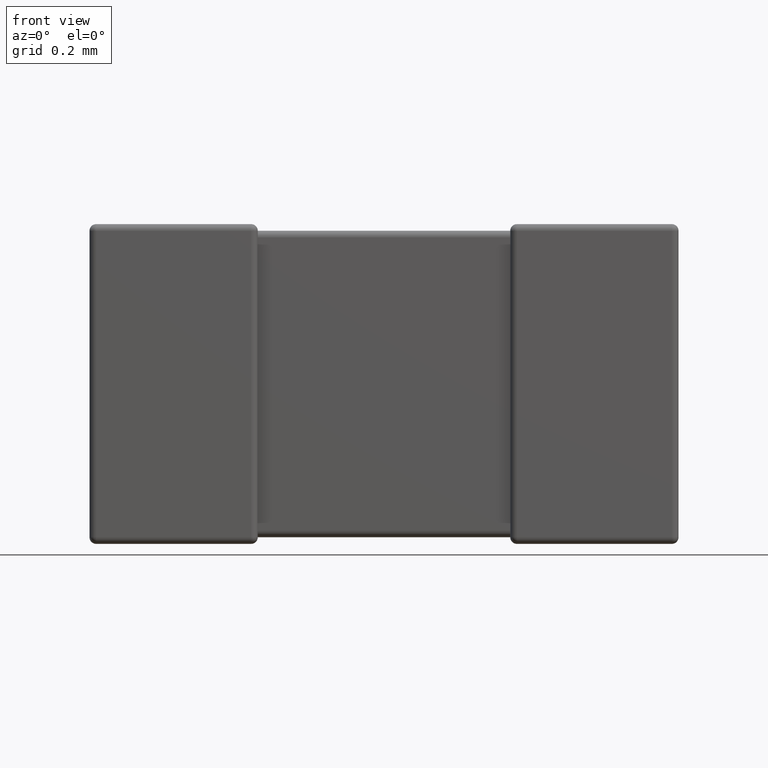
[diagram: clean part render]
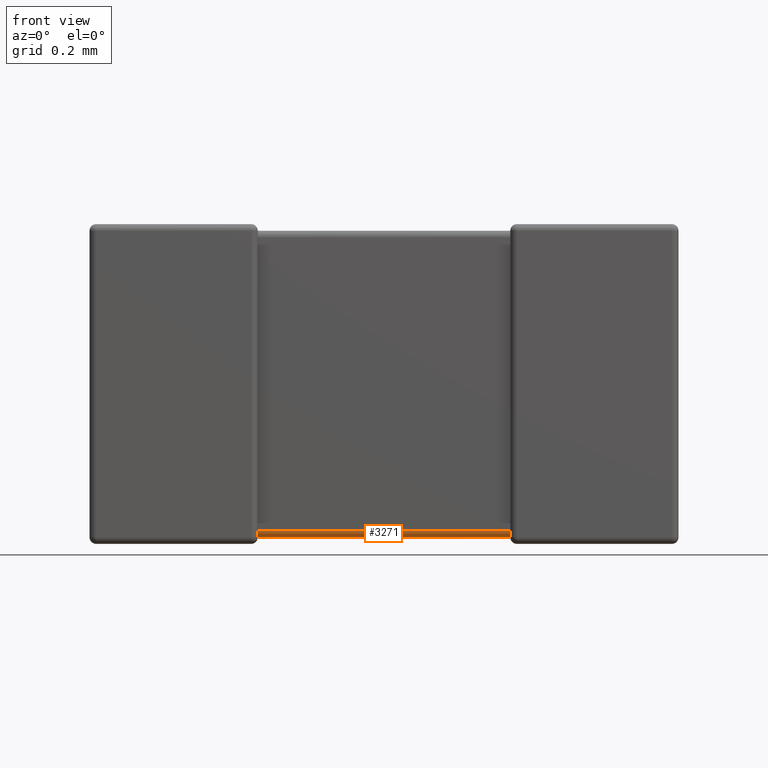
[diagram: same view with one face highlighted and labeled with its STEP entity id]
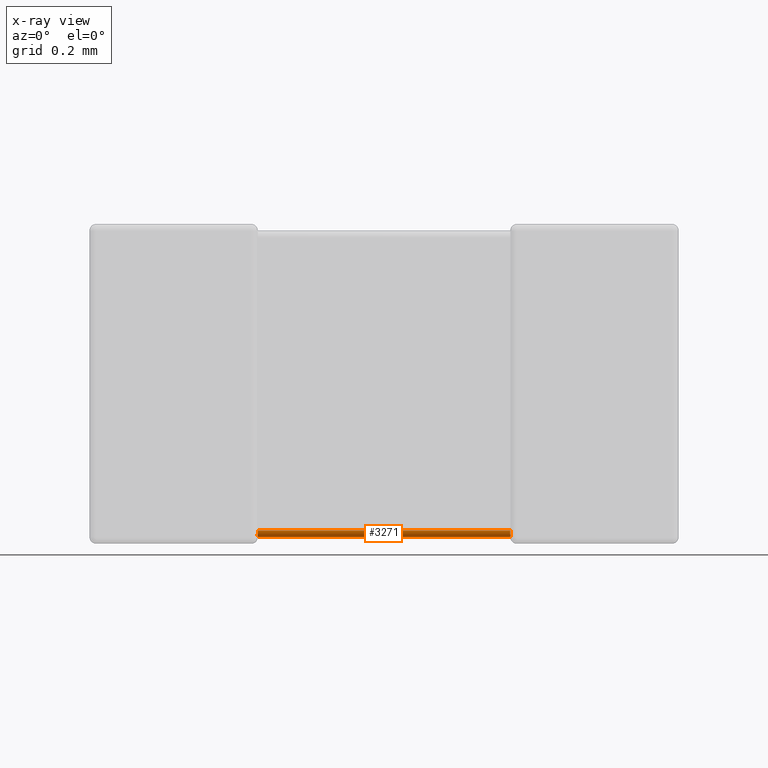
[diagram: x-ray of the same camera — body ghosted, the highlighted face saturated]
A machine part, front view. The second image highlights one B-rep face of the part: STEP entity #3271.
The next image is the same camera in x-ray: the body ghosted, the highlighted face saturated — about 0% of this face is hidden behind the body in this view.
In plain terms, the highlighted cylindrical surface (edge-blend (fillet) strip) has radius 0.0198 mm, axis along (-1, 0, 0).
Its self-contained STEP definition (entity closure, byte-faithful):
#34 = CARTESIAN_POINT ( 'NONE',  ( 0.4995373536458698194, 0.02727565736201552002, -0.9259891480540886066 ) ) ;
#74 = EDGE_LOOP ( 'NONE', ( #692, #3419, #3501, #1862, #925, #2786 ) ) ;
#76 = CARTESIAN_POINT ( 'NONE',  ( 0.4999999999999998890, 0.01975999999999995815, -0.9104800000000001781 ) ) ;
#88 = B_SPLINE_CURVE_WITH_KNOTS ( 'NONE', 3,
 ( #1906, #1145, #1876, #1851, #2244, #832, #34, #3294, #3366, #1165 ),
 .UNSPECIFIED., .F., .F.,
 ( 4, 3, 3, 4 ),
 ( 0.000000000000000000, 6.575748505964129826E-06, 1.316507642122578794E-05, 1.548236914787606350E-05 ),
 .UNSPECIFIED. ) ;
#96 = CARTESIAN_POINT ( 'NONE',  ( 1.250866571686121809, 0.02554757000375377715, -0.9244524299962463276 ) ) ;
#160 = CARTESIAN_POINT ( 'NONE',  ( 0.4999999999999998890, 0.01975999999999995815, -0.9104800000000001781 ) ) ;
#245 = VECTOR ( 'NONE', #770, 1000.000000000000000 ) ;
#252 = VERTEX_POINT ( 'NONE', #3134 ) ;
#267 = CARTESIAN_POINT ( 'NONE',  ( 1.250221449504932858, 0.02869747088377253702, -0.9271418707508221058 ) ) ;
#305 = CARTESIAN_POINT ( 'NONE',  ( 0.4999999999999998890, 0.03951999999999995794, -0.9302400000000001778 ) ) ;
#306 = DIRECTION ( 'NONE',  ( 0.000000000000000000, 0.000000000000000000, 1.000000000000000000 ) ) ;
#419 = VERTEX_POINT ( 'NONE', #3969 ) ;
#427 = CARTESIAN_POINT ( 'NONE',  ( 1.250030314106305607, 0.02085411815456950438, -0.9169640153402373040 ) ) ;
#450 = CARTESIAN_POINT ( 'NONE',  ( 1.250165884872743272, 0.02266366052932591163, -0.9210179389742869649 ) ) ;
#503 = EDGE_CURVE ( 'NONE', #2575, #252, #2344, .T. ) ;
#633 = CARTESIAN_POINT ( 'NONE',  ( 1.250015141683872288, 0.03238028720785968151, -0.9290202359418290312 ) ) ;
#653 = CARTESIAN_POINT ( 'NONE',  ( 0.4999999999999998890, 0.03951999999999995794, -0.9104800000000001781 ) ) ;
#692 = ORIENTED_EDGE ( 'NONE', *, *, #3554, .F. ) ;
#695 = EDGE_CURVE ( 'NONE', #2113, #2575, #4633, .T. ) ;
#770 = DIRECTION ( 'NONE',  ( 1.000000000000000000, 0.000000000000000000, -0.000000000000000000 ) ) ;
#832 = CARTESIAN_POINT ( 'NONE',  ( 0.4998341151272520100, 0.02898206102571223783, -0.9273363394706736207 ) ) ;
#858 = CARTESIAN_POINT ( 'NONE',  ( 1.250427682446228594, 0.02698031680185329281, -0.9258851767943458988 ) ) ;
#925 = ORIENTED_EDGE ( 'NONE', *, *, #3564, .F. ) ;
#971 = CARTESIAN_POINT ( 'NONE',  ( 0.4998818807962187027, 0.02191734067475393719, -0.9194579721919446946 ) ) ;
#1078 = DIRECTION ( 'NONE',  ( -1.000000000000000000, 0.000000000000000000, -0.000000000000000000 ) ) ;
#1144 = VECTOR ( 'NONE', #1078, 1000.000000000000000 ) ;
#1145 = CARTESIAN_POINT ( 'NONE',  ( 0.5000000000000000000, 0.03732808383134657293, -0.9302400000000001778 ) ) ;
#1165 = CARTESIAN_POINT ( 'NONE',  ( 0.4991334283138734174, 0.02554757000375355164, -0.9244524299962462166 ) ) ;
#1564 = CARTESIAN_POINT ( 'NONE',  ( 1.250568476622498482, 0.02449128366670873247, -0.9233328756485368327 ) ) ;
#1600 = CARTESIAN_POINT ( 'NONE',  ( 1.250866571686121809, 0.02554757000375377715, -0.9244524299962463276 ) ) ;
#1851 = CARTESIAN_POINT ( 'NONE',  ( 0.4999696858936897859, 0.03303598465976231857, -0.9291458818454304547 ) ) ;
#1862 = ORIENTED_EDGE ( 'NONE', *, *, #695, .F. ) ;
#1876 = CARTESIAN_POINT ( 'NONE',  ( 0.5000095657141203631, 0.03510619093040624056, -0.9298650147172372593 ) ) ;
#1906 = CARTESIAN_POINT ( 'NONE',  ( 0.5000000000000000000, 0.03951999999999995794, -0.9302400000000001778 ) ) ;
#1949 = CARTESIAN_POINT ( 'NONE',  ( 1.250000000000000000, 0.03951999999999995794, -0.9302400000000001778 ) ) ;
#2113 = VERTEX_POINT ( 'NONE', #4051 ) ;
#2231 = CARTESIAN_POINT ( 'NONE',  ( 1.249990434285875196, 0.02013498528276279342, -0.9148938090695934999 ) ) ;
#2244 = CARTESIAN_POINT ( 'NONE',  ( 0.4999297633108933936, 0.03096355854668191021, -0.9284259778612524716 ) ) ;
#2311 = CARTESIAN_POINT ( 'NONE',  ( 1.250001483878441011, 0.03643593483539507571, -0.9299978416342709053 ) ) ;
#2344 = B_SPLINE_CURVE_WITH_KNOTS ( 'NONE', 3,
 ( #1600, #858, #267, #3413, #633, #2678, #2311, #4223, #3887, #1949 ),
 .UNSPECIFIED., .F., .F.,
 ( 4, 3, 3, 4 ),
 ( 0.000000000000000000, 6.219594428771540538E-06, 1.240638412602441460E-05, 1.546491986206367930E-05 ),
 .UNSPECIFIED. ) ;
#2422 = CARTESIAN_POINT ( 'NONE',  ( 0.4999945639434609790, 0.02032462987869276816, -0.9156048611872767973 ) ) ;
#2462 = CARTESIAN_POINT ( 'NONE',  ( 0.5000004886258793135, 0.01984121509875512099, -0.9125455182049120317 ) ) ;
#2575 = VERTEX_POINT ( 'NONE', #3279 ) ;
#2678 = CARTESIAN_POINT ( 'NONE',  ( 1.250005436056534469, 0.03439513881272316526, -0.9296753701213072985 ) ) ;
#2786 = ORIENTED_EDGE ( 'NONE', *, *, #4352, .F. ) ;
#2788 = CARTESIAN_POINT ( 'NONE',  ( 0.4999848583161231041, 0.02097976405817104581, -0.9176197127921402741 ) ) ;
#2851 = DIRECTION ( 'NONE',  ( -1.000000000000000000, 0.000000000000000000, 0.000000000000000000 ) ) ;
#2947 = CARTESIAN_POINT ( 'NONE',  ( 1.250000000000000000, 0.01975999999999995815, -0.9126719161686533965 ) ) ;
#3020 = CARTESIAN_POINT ( 'NONE',  ( 0.4991334283138734174, 0.02554757000375355164, -0.9244524299962462166 ) ) ;
#3067 = B_SPLINE_CURVE_WITH_KNOTS ( 'NONE', 3,
 ( #3127, #3849, #3766, #971, #2788, #2422, #4604, #2462, #3149, #160 ),
 .UNSPECIFIED., .F., .F.,
 ( 4, 3, 3, 4 ),
 ( 0.000000000000000000, 6.219594428771490563E-06, 1.240638412602441121E-05, 1.546491986206343874E-05 ),
 .UNSPECIFIED. ) ;
#3127 = CARTESIAN_POINT ( 'NONE',  ( 0.4991334283138734174, 0.02554757000375355164, -0.9244524299962462166 ) ) ;
#3134 = CARTESIAN_POINT ( 'NONE',  ( 1.250000000000000000, 0.03951999999999995794, -0.9302400000000001778 ) ) ;
#3149 = CARTESIAN_POINT ( 'NONE',  ( 0.5000000000000267564, 0.01975999999999820261, -0.9115111859847080389 ) ) ;
#3271 = ADVANCED_FACE ( 'NONE', ( #3884 ), #3496, .T. ) ;
#3275 = LINE ( 'NONE', #3997, #245 ) ;
#3279 = CARTESIAN_POINT ( 'NONE',  ( 1.250866571686121809, 0.02554757000375377715, -0.9244524299962463276 ) ) ;
#3294 = CARTESIAN_POINT ( 'NONE',  ( 0.4994315233774968554, 0.02666712435146257471, -0.9255087163332907929 ) ) ;
#3328 = CARTESIAN_POINT ( 'NONE',  ( 1.250700916183603351, 0.02500679030572459591, -0.9239116502983092394 ) ) ;
#3366 = CARTESIAN_POINT ( 'NONE',  ( 0.4992990838163920975, 0.02608834970169046294, -0.9249932096942751203 ) ) ;
#3413 = CARTESIAN_POINT ( 'NONE',  ( 1.250118119203776468, 0.03054202780805520892, -0.9280826593252461398 ) ) ;
#3419 = ORIENTED_EDGE ( 'NONE', *, *, #3646, .F. ) ;
#3496 = CYLINDRICAL_SURFACE ( 'NONE', #3820, 0.01975999999999995815 ) ;
#3501 = ORIENTED_EDGE ( 'NONE', *, *, #503, .F. ) ;
#3539 = LINE ( 'NONE', #305, #1144 ) ;
#3554 = EDGE_CURVE ( 'NONE', #419, #3809, #88, .T. ) ;
#3564 = EDGE_CURVE ( 'NONE', #4563, #2113, #3275, .T. ) ;
#3646 = EDGE_CURVE ( 'NONE', #252, #419, #3539, .T. ) ;
#3660 = CARTESIAN_POINT ( 'NONE',  ( 1.250000000000000000, 0.01975999999999995815, -0.9104800000000001781 ) ) ;
#3766 = CARTESIAN_POINT ( 'NONE',  ( 0.4997785504950624791, 0.02285812924917788105, -0.9213025291162274533 ) ) ;
#3809 = VERTEX_POINT ( 'NONE', #3020 ) ;
#3820 = AXIS2_PLACEMENT_3D ( 'NONE', #653, #2851, #306 ) ;
#3849 = CARTESIAN_POINT ( 'NONE',  ( 0.4995723175537665761, 0.02411482320565406373, -0.9230196831981466454 ) ) ;
#3884 = FACE_OUTER_BOUND ( 'NONE', #74, .T. ) ;
#3887 = CARTESIAN_POINT ( 'NONE',  ( 1.249999999999968692, 0.03848881401529202773, -0.9302400000000019542 ) ) ;
#3969 = CARTESIAN_POINT ( 'NONE',  ( 0.5000000000000000000, 0.03951999999999995794, -0.9302400000000001778 ) ) ;
#3997 = CARTESIAN_POINT ( 'NONE',  ( 1.250000000000000000, 0.01975999999999995815, -0.9104800000000001781 ) ) ;
#4049 = CARTESIAN_POINT ( 'NONE',  ( 1.250462646354125518, 0.02401085194591070365, -0.9227243426379836411 ) ) ;
#4051 = CARTESIAN_POINT ( 'NONE',  ( 1.250000000000000000, 0.01975999999999995815, -0.9104800000000001781 ) ) ;
#4223 = CARTESIAN_POINT ( 'NONE',  ( 1.249999511374116024, 0.03745448179508800712, -0.9301587849012449283 ) ) ;
#4352 = EDGE_CURVE ( 'NONE', #3809, #4563, #3067, .T. ) ;
#4378 = CARTESIAN_POINT ( 'NONE',  ( 1.250070236689101888, 0.02157402213874743541, -0.9190364414533175319 ) ) ;
#4563 = VERTEX_POINT ( 'NONE', #76 ) ;
#4604 = CARTESIAN_POINT ( 'NONE',  ( 0.4999985161215543261, 0.02000215836572922026, -0.9135640651646047550 ) ) ;
#4633 = B_SPLINE_CURVE_WITH_KNOTS ( 'NONE', 3,
 ( #3660, #2947, #2231, #427, #4378, #450, #4049, #1564, #3328, #96 ),
 .UNSPECIFIED., .F., .F.,
 ( 4, 3, 3, 4 ),
 ( 0.000000000000000000, 6.575748505963507257E-06, 1.316507642122438017E-05, 1.548236914787563321E-05 ),
 .UNSPECIFIED. ) ;